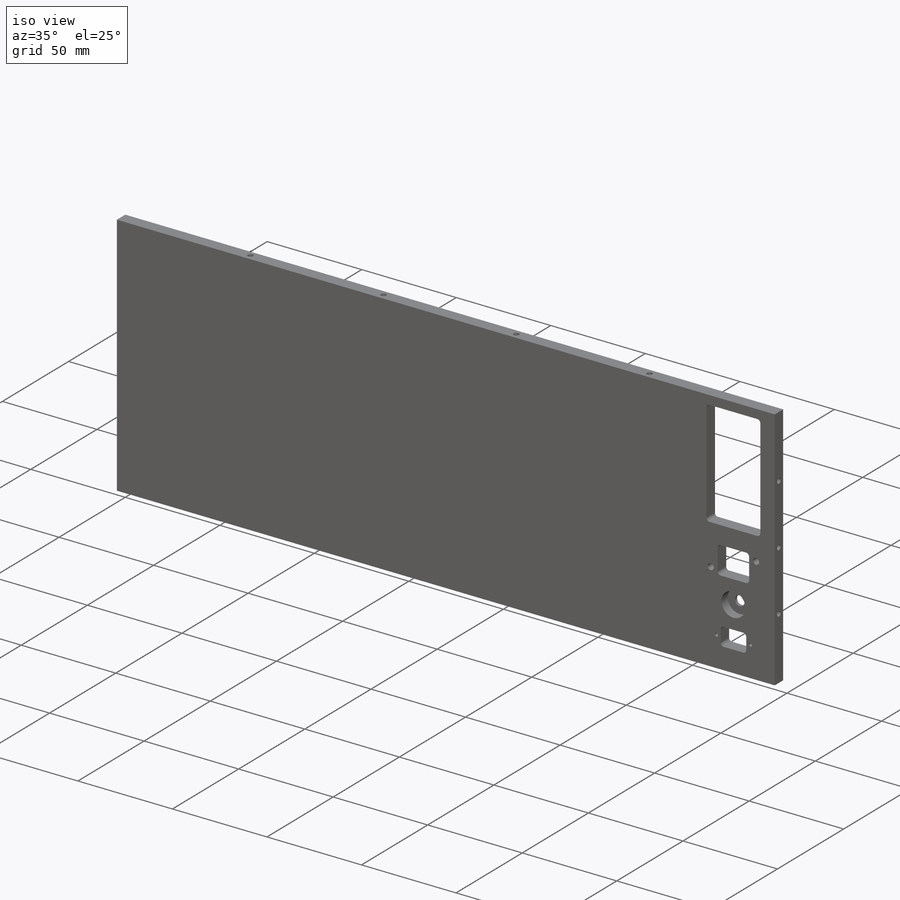
[diagram: iso view]
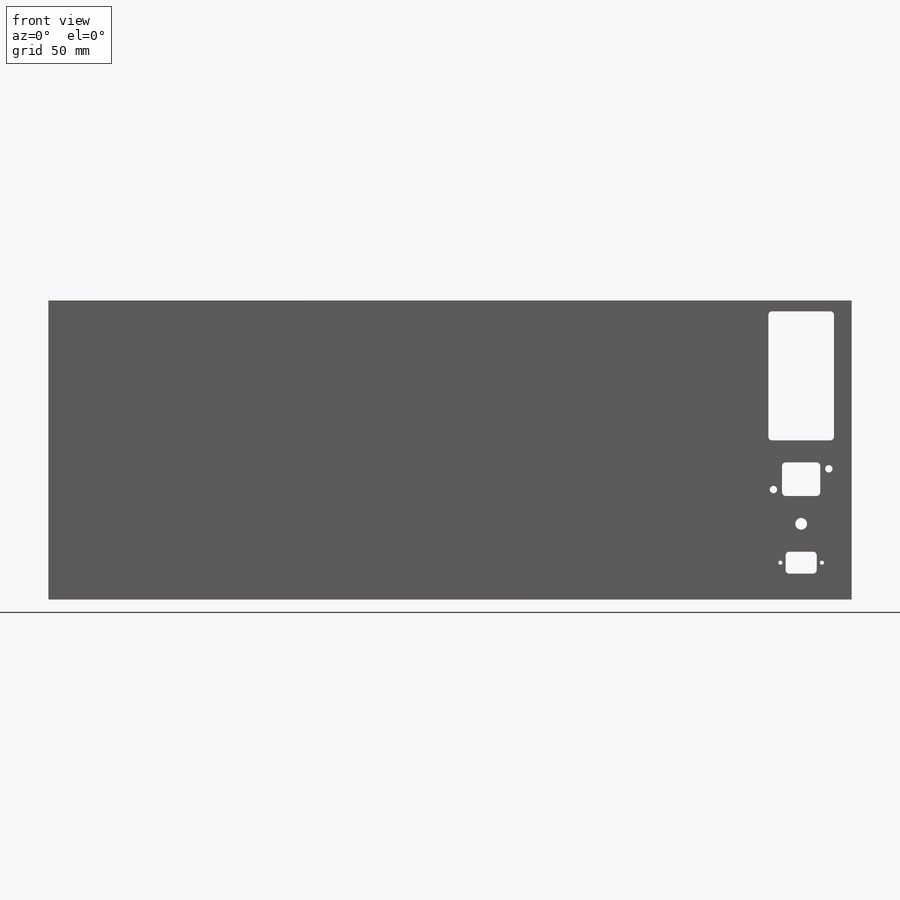
[diagram: front view]
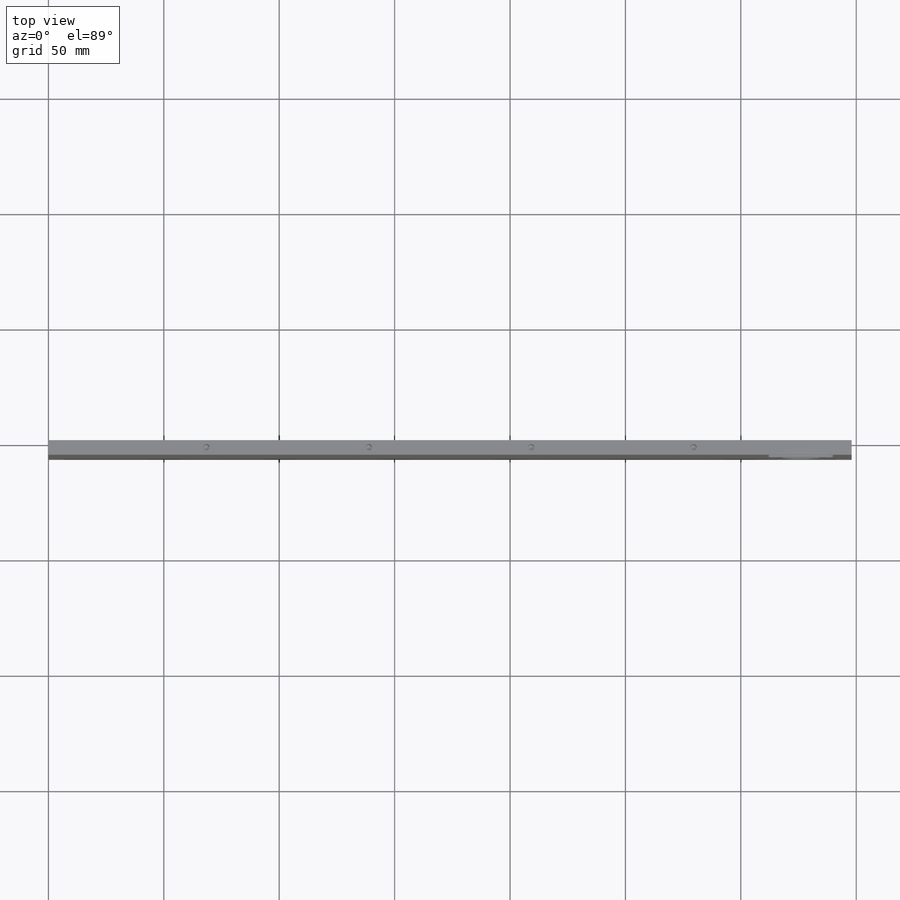
[diagram: top view]
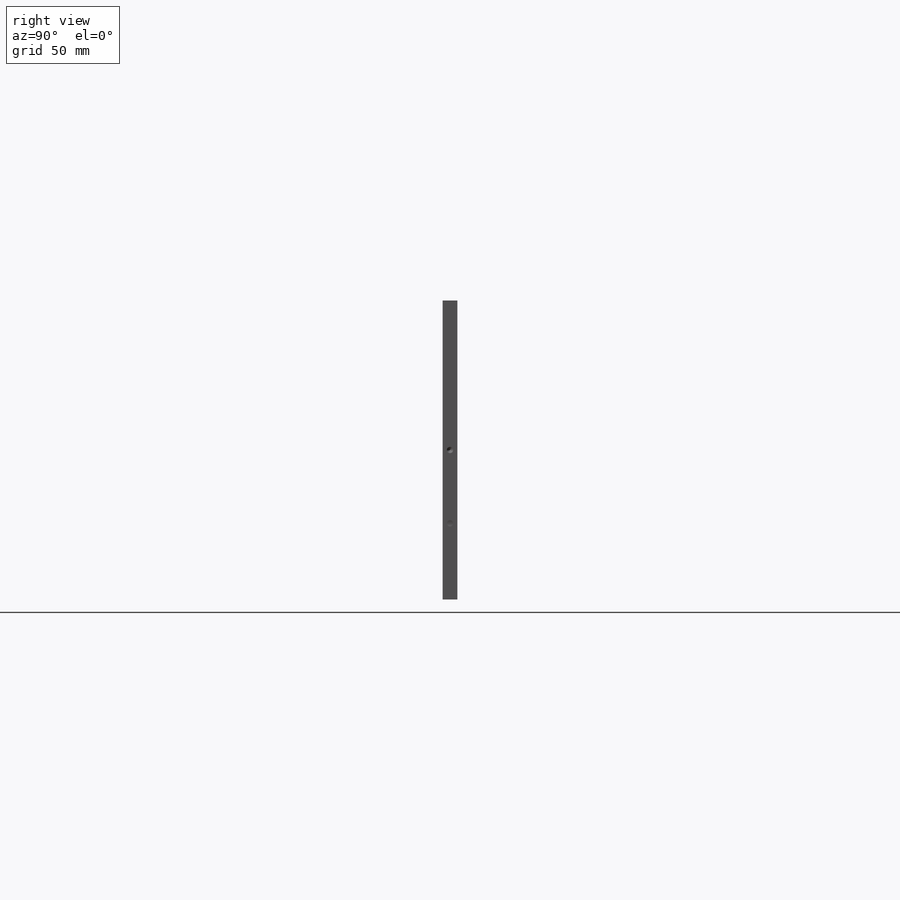
[diagram: right view]
SOLIDWORKS PART (.sldprt)
format: sldprt  version: not decoded by parser v0  size: 467,456 bytes
history: native  units: mm
features: sketch x11, hole x4, cut_extrude x2, material x1, extrude x1 (+13 scaffold rows collapsed)
feature tree (32):
  scaffold x13  (default folders/planes/origin — collapsed)
  material  "6061 Alloy"
  sketch  "Sketch1"  dims[D1=347.98mm D2=129.54mm]
  extrude  "Boss-Extrude1"  Depth=6.35mm
  hole  "Tap Drill for #6-32 Tap4"  Diameter=2.7051mm Depth=17.78mm
  sketch  "Sketch8"  dims[c1.D1=63.5mm c1.D2=31.75mm c1.D3=31.75mm c2.D1=~37.506662mm]
  sketch  "Sketch9"  dims[Hole Dia.=2.7051mm Hole Depth=17.78mm Drill Angle=118.0deg]
  sketch  "Sketch10"  dims[c1.D10=6.9088mm c1.D11=26.924mm c1.D12=26.924mm c1.D13=2.54mm c1.D15=1.2446mm c1.D8=10.9982mm c2.D13=1.5875mm c2.D12=~1.722247mm c2.D15=3.2004mm c2.D16=3.2004mm c2.D17=1.778mm c2.D18=1.778mm c2.D21=1.5875mm c2.D22=1.5875mm c2.D26=5.1mm c2.D27=3.6mm c2.D28=12.7mm c2.D11=3.175mm c3.D15=3.175mm c3.D27=1.2954mm c3.D1=28.448mm c3.D2=55.9054mm c3.D3=12.7mm c3.D4=19.05mm c3.D5=9.5mm c3.D6=13.5mm c3.D7=19.05mm c3.D8=19.05mm c3.D9=38.1mm c3.D12=40.64mm c3.D13=~19.886777mm c3.D14=12.7mm c4.D15=90.0deg c4.D13=~19.886777mm c4.D14=12.7mm c5.D13=~19.886777mm c5.D3=6.35mm c5.D4=12.7mm c5.D7=6.35mm c5.1.3=33.02mm c5.D9=~59.639663mm c5.D12=50.8mm c5.D8=60.325mm c6.D9=9.7536mm c6.D11=6.7564mm c6.D13=9.7536mm c7.D9=6.7564mm c7.D11=~10.751687mm c8.D11=90.0deg c8.D13=15.0114mm c9.D11=9.7536mm c9.D14=7.5057mm c9.D9=31.75mm c10.D11=57.15mm c10.D3=50.8mm c10.D4=17.399mm c10.D7=31.1277mm c10.D9=3.175mm c10.D8=~11.188789mm c10.D10=13.5mm c11.D8=14.5542mm c11.D10=13.5mm c12.D10=90.0deg c12.D11=16.5608mm c13.D10=90.0deg c14.D10=16.5608mm c14.D11=6.35mm c14.D12=11.9888mm c14.D14=11.9888mm c14.D15=~13.527227mm c14.D16=~16.66191mm c15.D14=11.9888mm c15.D19=9.0mm c15.D20=9.0mm c15.D23=4.75mm c15.D24=4.75mm c16.D23=4.75mm c16.D24=4.4958mm c16.D25=4.4958mm c16.D27=6.35mm c16.D28=~12.763512mm c16.D7=4.699mm c16.D4=7.62mm c16.D3=3.175mm c17.D28=~8.17738mm c17.D11=6.35mm c17.D27=~10.525165mm c18.D28=90.0deg c18.D27=6.35mm c19.D28=~15.172114mm c19.D29=90.0deg c19.D9=6.35mm c19.D11=6.35mm c19.D27=6.35mm c20.D28=6.75mm c20.D3=6.35mm c20.D9=6.35mm c20.D16=6.35mm c21.D3=9.525mm c21.D9=9.525mm c21.D16=9.525mm]
  hole  "Tap Drill for #6-32 Tap1"  Diameter=2.7051mm Depth=17.78mm
  sketch  "Sketch11"  dims[D1=35.179mm D2=35.179mm D3=70.358mm D4=70.358mm]
  sketch  "Sketch12"  dims[Hole Dia.=2.7051mm Hole Depth=17.78mm Drill Angle=118.0deg]
  hole  "Tap Drill for #6-32 Tap2"  Diameter=2.7051mm Depth=17.78mm
  sketch  "Sketch13"
  sketch  "Sketch14"  dims[Hole Dia.=2.7051mm Hole Depth=17.78mm Drill Angle=118.0deg]
  cut_extrude  "Cut-Extrude1"  [1 undecoded]
  sketch  "Sketch15"  dims[D1=12.7mm]
  cut_extrude  "Cut-Extrude2"  Depth=4.7625mm
  hole  "Tap Drill for #6-32 Tap5"  Diameter=2.7051mm Depth=17.78mm
  sketch  "Sketch17"  dims[D1=31.75mm D2=31.75mm]
  sketch  "Sketch16"  dims[hole-wizard template sketch: 47 standard entries collapsed; hole parameters kept: c15.Hole Depth=17.78mm c15.D3=~14.816244mm c15.Drill Angle=118.0deg]
decode coverage: 16 of 18 modeling features carry decoded parameters
note: ~ marks probable driven/reference dimensions
note: 1 parameter value undecoded
summary: Diameter pulled from absorbed wizard sketch
note: suppression state not decoded; provenance and decode notes live in map.json
